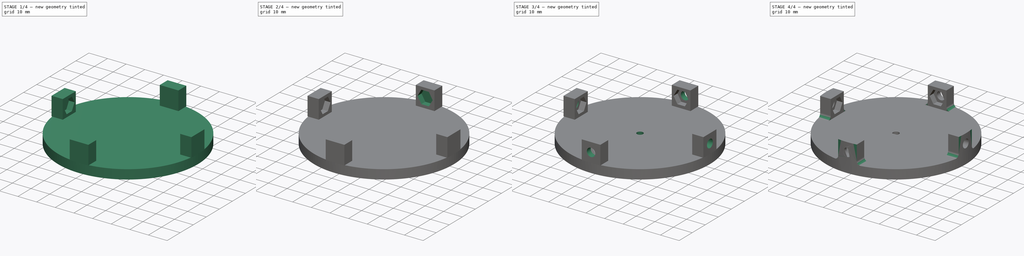
[diagram: build sequence overview — one tinted view per stage of 4, left to right]
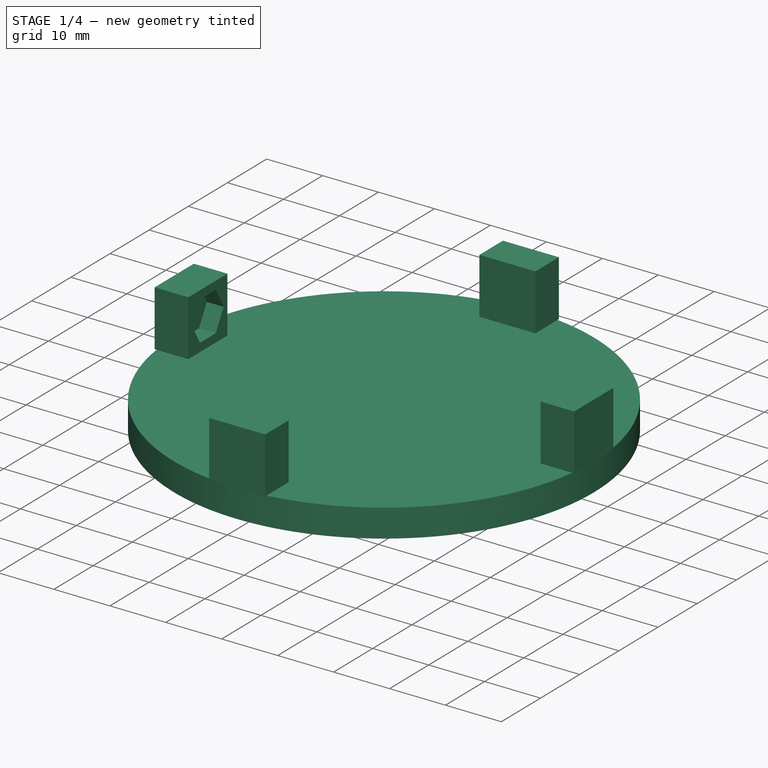
[diagram: stage 1 of 4 — iso view after this stage's code; geometry added in this stage tinted green]
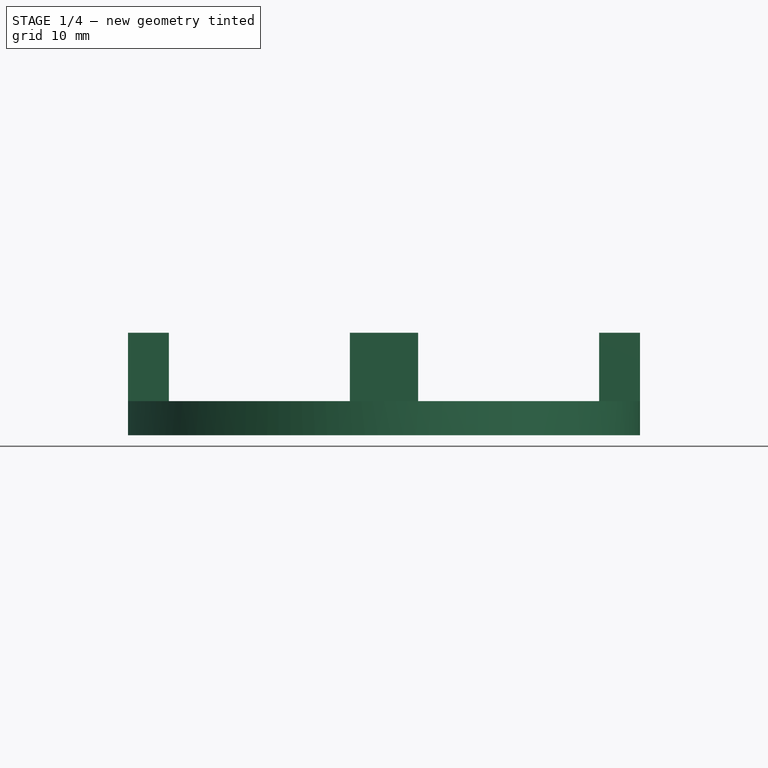
[diagram: stage 1 of 4 — front view after this stage's code; geometry added in this stage tinted green]
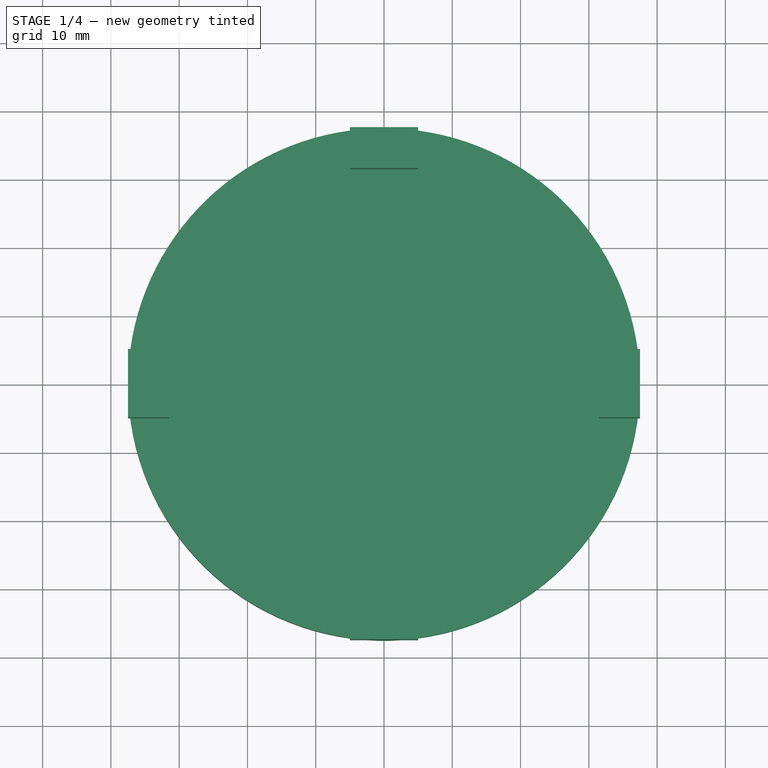
[diagram: stage 1 of 4 — top view after this stage's code; geometry added in this stage tinted green]
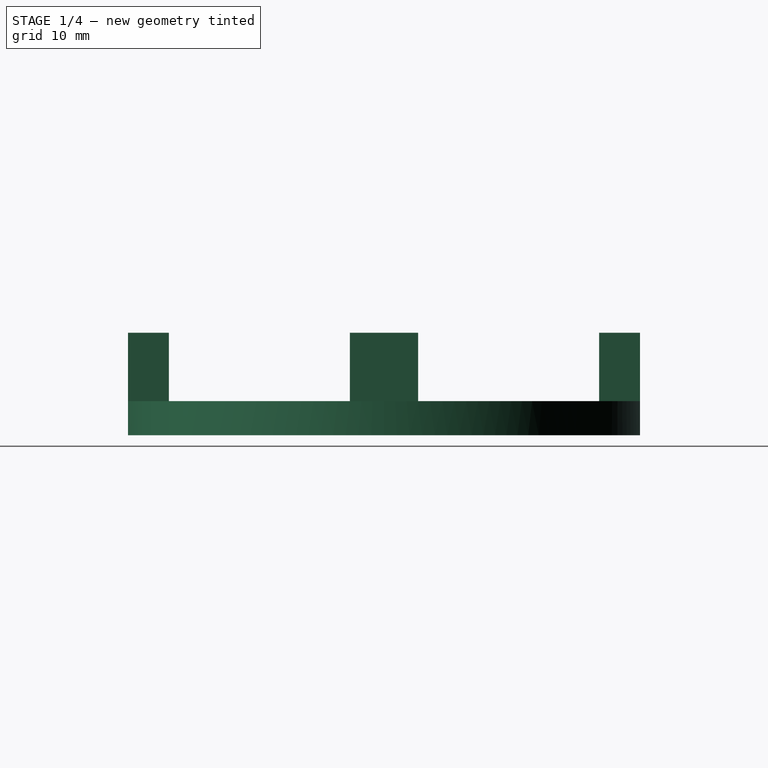
[diagram: stage 1 of 4 — right view after this stage's code; geometry added in this stage tinted green]
FCSTD DOCUMENT  (FreeCAD 1.0R38641 +468 (Git))
Label: MotorStop-v2
License: All rights reserved
LicenseURL: https://en.wikipedia.org/wiki/All_rights_reserved
objects: Sketcher::SketchObject×11, PartDesign::Pocket×8, PartDesign::Pad×3, PartDesign::Fillet×1, PartDesign::Body×1
note: 59 computed .brp shape members not serialized (recipe doc carries the construction recipe); baked Part::Feature solids carry a one-line shape summary decoded from their .brp

FEATURE [Sketcher::SketchObject] Sketch
  ArcFitTolerance = 1e-06
  AttachmentSupport = -> [XY_Plane]
  FullyConstrained = true
  MakeInternals = false
  MapMode = 5
  sketch-geometry (1):
    g0: Circle CenterX=0 CenterY=0 CenterZ=0 NormalX=0 NormalY=0 NormalZ=1 AngleXU=0 Radius=37.5
  constraints (2):
    c: Diameter(g0) = 75
    c: Coincident(g0,g-1)
FEATURE [PartDesign::Pad] Pad
  Direction = (0,0,1)
  Length = 5
  Length2 = 10
  Profile = -> Sketch
  ReferenceAxis = -> Sketch [N_Axis]
  Refine = true
  Suppressed = false
  Type = 0
FEATURE [Sketcher::SketchObject] Sketch001
  ArcFitTolerance = 1e-06
  AttachmentSupport = -> [Pad]
  FullyConstrained = true
  MakeInternals = false
  MapMode = 5
  Placement = pos=(0,0,5) rot=(0,0,1;0rad)
  sketch-geometry (16):
    g0: LineSegment StartX=-5 StartY=37.5 StartZ=0 EndX=-5 EndY=31.5 EndZ=0
    g1: LineSegment StartX=-5 StartY=31.5 StartZ=0 EndX=5 EndY=31.5 EndZ=0
    g2: LineSegment StartX=5 StartY=31.5 StartZ=0 EndX=5 EndY=37.5 EndZ=0
    g3: LineSegment StartX=5 StartY=37.5 StartZ=0 EndX=-5 EndY=37.5 EndZ=0
    g4: LineSegment StartX=-5 StartY=-37.5 StartZ=0 EndX=5 EndY=-37.5 EndZ=0
    g5: LineSegment StartX=5 StartY=-37.5 StartZ=0 EndX=5 EndY=-31.5 EndZ=0
    g6: LineSegment StartX=5 StartY=-31.5 StartZ=0 EndX=-5 EndY=-31.5 EndZ=0
    g7: LineSegment StartX=-5 StartY=-31.5 StartZ=0 EndX=-5 EndY=-37.5 EndZ=0
    g8: LineSegment StartX=-37.5 StartY=5 StartZ=0 EndX=-37.5 EndY=-5 EndZ=0
    g9: LineSegment StartX=-37.5 StartY=-5 StartZ=0 EndX=-31.5 EndY=-5 EndZ=0
    g10: LineSegment StartX=-31.5 StartY=-5 StartZ=0 EndX=-31.5 EndY=5 EndZ=0
    g11: LineSegment StartX=-31.5 StartY=5 StartZ=0 EndX=-37.5 EndY=5 EndZ=0
    g12: LineSegment StartX=31.5 StartY=5 StartZ=0 EndX=31.5 EndY=-5 EndZ=0
    g13: LineSegment StartX=31.5 StartY=-5 StartZ=0 EndX=37.5 EndY=-5 EndZ=0
    g14: LineSegment StartX=37.5 StartY=-5 StartZ=0 EndX=37.5 EndY=5 EndZ=0
    g15: LineSegment StartX=37.5 StartY=5 StartZ=0 EndX=31.5 EndY=5 EndZ=0
  constraints (48):
    c: Coincident(g0,g1)
    c: Coincident(g1,g2)
    c: Coincident(g2,g3)
    c: Coincident(g3,g0)
    c: Vertical(g0)
    c: Vertical(g2)
    c: Horizontal(g1)
    c: Horizontal(g3)
    c: Distance(g0,g2) = 10
    c: Distance(g1,g3) = 6
    c: DistanceY(g-1,g2) = 37.5
    c: DistanceX(g0,g-1) = 5
    c: Coincident(g4,g5)
    c: Coincident(g5,g6)
    c: Coincident(g6,g7)
    c: Coincident(g7,g4)
    c: Horizontal(g4)
    c: Horizontal(g6)
    c: Vertical(g5)
    c: Vertical(g7)
    c: Distance(g5,g7) = 10
    c: Distance(g4,g6) = 6
    c: DistanceX(g-1,g5) = 5
    c: DistanceY(g4,g-1) = 37.5
    c: Coincident(g8,g9)
    c: Coincident(g9,g10)
    c: Coincident(g10,g11)
    c: Coincident(g11,g8)
    c: Vertical(g8)
    c: Vertical(g10)
    c: Horizontal(g9)
    c: Horizontal(g11)
    c: Distance(g8,g10) = 6
    c: Distance(g9,g11) = 10
    c: Coincident(g12,g13)
    c: Coincident(g13,g14)
    c: Coincident(g14,g15)
    c: Coincident(g15,g12)
    c: Vertical(g12)
    c: Vertical(g14)
    c: Horizontal(g13)
    c: Horizontal(g15)
    c: Distance(g12,g14) = 6
    c: Distance(g13,g15) = 10
    c: DistanceY(g12,g-1) = 5
    c: DistanceY(g9,g-1) = 5
    c: DistanceX(g8,g-1) = 37.5
    c: DistanceX(g-1,g13) = 37.5
FEATURE [PartDesign::Pad] Pad001
  BaseFeature = -> Pad
  Direction = (0,0,1)
  Length = 10
  Length2 = 10
  Profile = -> Sketch001
  ReferenceAxis = -> Sketch001 [N_Axis]
  Refine = true
  Suppressed = false
  Type = 0
FEATURE [Sketcher::SketchObject] Sketch002
  ArcFitTolerance = 1e-06
  AttachmentSupport = -> [Pad001]
  FullyConstrained = true
  MakeInternals = false
  MapMode = 5
  Placement = pos=(-31.5,0,0) rot=(0.57735,0.57735,0.57735;2.0944rad)
  sketch-geometry (7):
    g0: LineSegment StartX=4.04145 StartY=10 StartZ=0 EndX=2.02073 EndY=13.5 EndZ=0
    g1: LineSegment StartX=2.02073 StartY=13.5 StartZ=0 EndX=-2.02073 EndY=13.5 EndZ=0
    g2: LineSegment StartX=-2.02073 StartY=13.5 StartZ=0 EndX=-4.04145 EndY=10 EndZ=0
    g3: LineSegment StartX=-4.04145 StartY=10 StartZ=0 EndX=-2.02073 EndY=6.5 EndZ=0
    g4: LineSegment StartX=-2.02073 StartY=6.5 StartZ=0 EndX=2.02073 EndY=6.5 EndZ=0
    g5: LineSegment StartX=2.02073 StartY=6.5 StartZ=0 EndX=4.04145 EndY=10 EndZ=0
    g6: Circle [constr] CenterX=0 CenterY=10 CenterZ=0 NormalX=0 NormalY=0 NormalZ=1 AngleXU=0 Radius=4.04145
  constraints (17):
    c: Coincident(g0,g1)
    c: Coincident(g1,g2)
    c: Coincident(g2,g3)
    c: Coincident(g3,g4)
    c: Coincident(g4,g5)
    c: Coincident(g5,g0)
    c: Equal(g0, g1-g5) x5
    c: PointOnObject(g0,g6)
    c: PointOnObject(g1,g6)
    c: PointOnObject(g2,g6)
    c: PointOnObject(g3,g6)
    c: PointOnObject(g4,g6)
    c: PointOnObject(g5,g6)
    c: PointOnObject(g6,g-2)
    c: DistanceY(g-1,g6) = 10
    c: DistanceY(g4,g0) = 7
    c: Parallel(g4,g-1)
FEATURE [PartDesign::Pocket] Pocket
  BaseFeature = -> Pad001
  Direction = (-1,0,0)
  Length = 3
  Length2 = 5
  Profile = -> Sketch002
  ReferenceAxis = -> Sketch002 [N_Axis]
  Refine = true
  Suppressed = false
  Type = 0
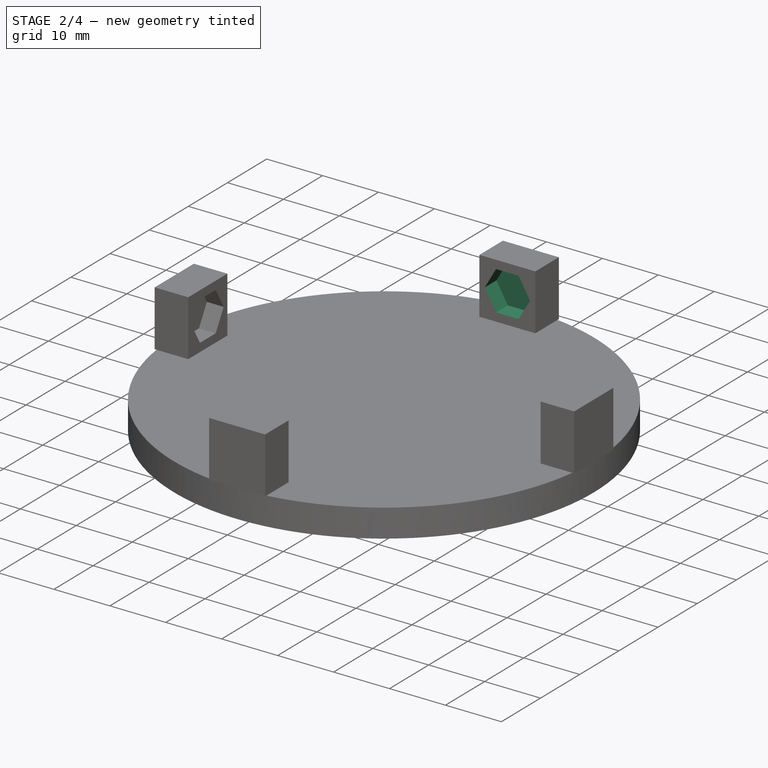
[diagram: stage 2 of 4 — iso view after this stage's code; geometry added in this stage tinted green]
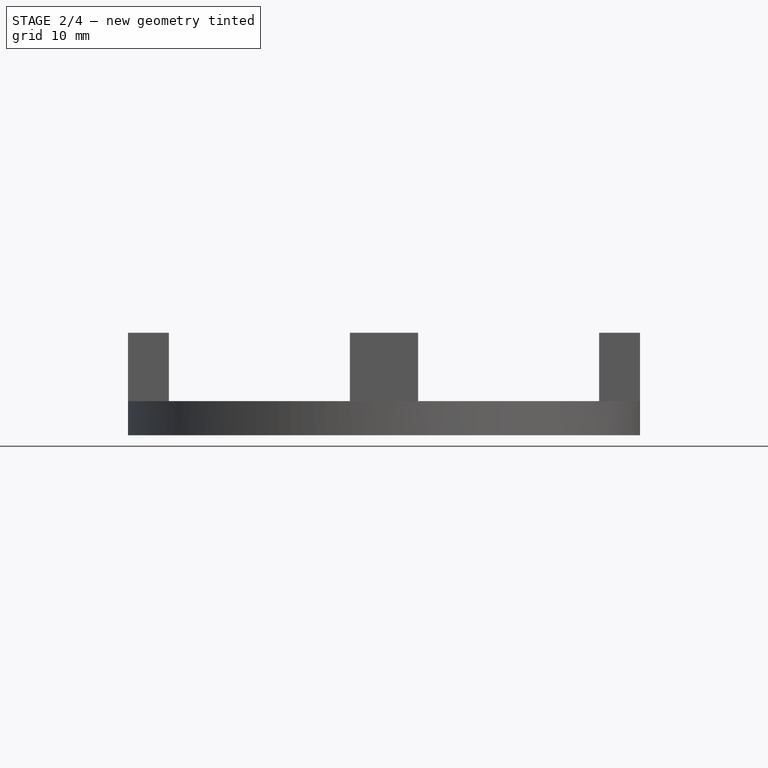
[diagram: stage 2 of 4 — front view after this stage's code; geometry added in this stage tinted green]
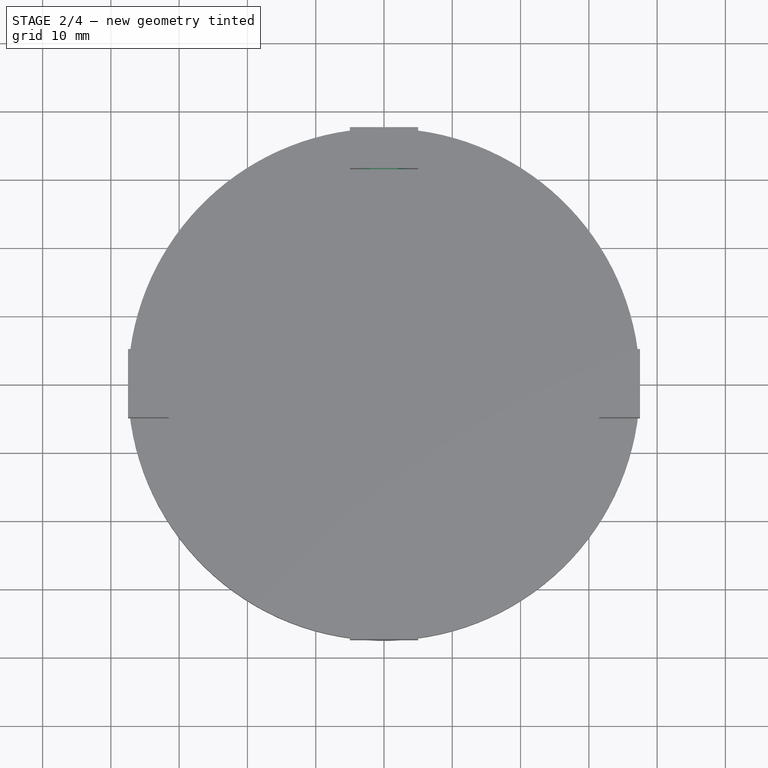
[diagram: stage 2 of 4 — top view after this stage's code; geometry added in this stage tinted green]
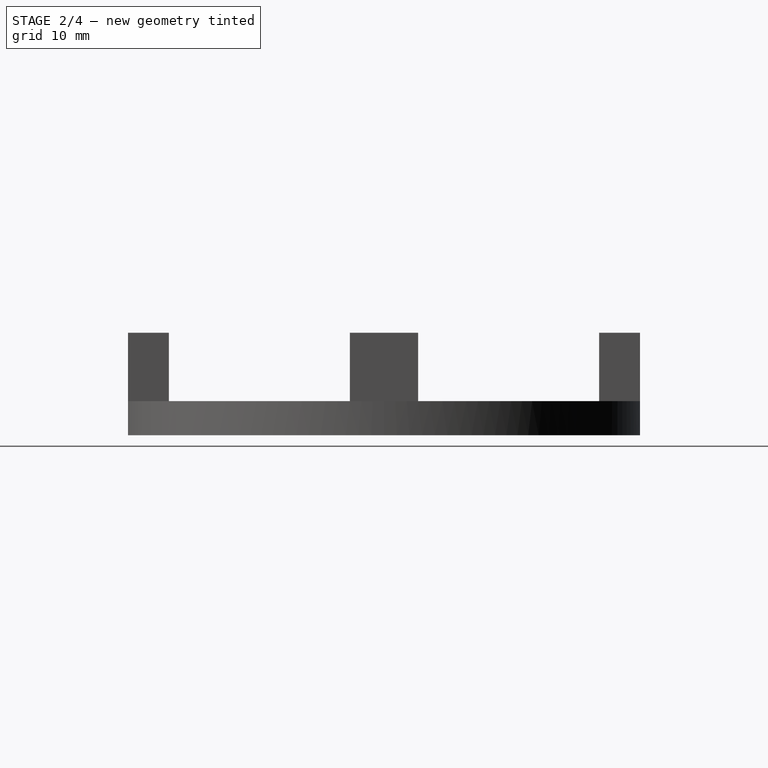
[diagram: stage 2 of 4 — right view after this stage's code; geometry added in this stage tinted green]
FEATURE [Sketcher::SketchObject] Sketch003
  ArcFitTolerance = 1e-06
  AttachmentSupport = -> [Pocket]
  FullyConstrained = true
  MakeInternals = false
  MapMode = 5
  Placement = pos=(0,31.5,0) rot=(1,0,0;1.5708rad)
  sketch-geometry (7):
    g0: LineSegment StartX=4.04145 StartY=10 StartZ=0 EndX=2.02073 EndY=13.5 EndZ=0
    g1: LineSegment StartX=2.02073 StartY=13.5 StartZ=0 EndX=-2.02073 EndY=13.5 EndZ=0
    g2: LineSegment StartX=-2.02073 StartY=13.5 StartZ=0 EndX=-4.04145 EndY=10 EndZ=0
    g3: LineSegment StartX=-4.04145 StartY=10 StartZ=0 EndX=-2.02073 EndY=6.5 EndZ=0
    g4: LineSegment StartX=-2.02073 StartY=6.5 StartZ=0 EndX=2.02073 EndY=6.5 EndZ=0
    g5: LineSegment StartX=2.02073 StartY=6.5 StartZ=0 EndX=4.04145 EndY=10 EndZ=0
    g6: Circle [constr] CenterX=0 CenterY=10 CenterZ=0 NormalX=0 NormalY=0 NormalZ=1 AngleXU=0 Radius=4.04145
  constraints (17):
    c: Coincident(g0,g1)
    c: Coincident(g1,g2)
    c: Coincident(g2,g3)
    c: Coincident(g3,g4)
    c: Coincident(g4,g5)
    c: Coincident(g5,g0)
    c: Equal(g0, g1-g5) x5
    c: PointOnObject(g0,g6)
    c: PointOnObject(g1,g6)
    c: PointOnObject(g2,g6)
    c: PointOnObject(g3,g6)
    c: PointOnObject(g4,g6)
    c: PointOnObject(g5,g6)
    c: PointOnObject(g6,g-2)
    c: DistanceY(g6) = 10
    c: DistanceY(g4,g0) = 7
    c: Parallel(g4,g-1)
FEATURE [PartDesign::Pocket] Pocket001
  BaseFeature = -> Pocket
  Direction = (0,1,-2e-16)
  Length = 3
  Length2 = 5
  Profile = -> Sketch003
  ReferenceAxis = -> Sketch003 [N_Axis]
  Refine = true
  Suppressed = false
  Type = 0
FEATURE [Sketcher::SketchObject] Sketch004
  ArcFitTolerance = 1e-06
  AttachmentSupport = -> [Pocket001]
  FullyConstrained = true
  MakeInternals = false
  MapMode = 5
  Placement = pos=(31.5,0,0) rot=(0.57735,-0.57735,-0.57735;2.0944rad)
  sketch-geometry (7):
    g0: LineSegment StartX=4.04145 StartY=10 StartZ=0 EndX=2.02073 EndY=13.5 EndZ=0
    g1: LineSegment StartX=2.02073 StartY=13.5 StartZ=0 EndX=-2.02073 EndY=13.5 EndZ=0
    g2: LineSegment StartX=-2.02073 StartY=13.5 StartZ=0 EndX=-4.04145 EndY=10 EndZ=0
    g3: LineSegment StartX=-4.04145 StartY=10 StartZ=0 EndX=-2.02073 EndY=6.5 EndZ=0
    g4: LineSegment StartX=-2.02073 StartY=6.5 StartZ=0 EndX=2.02073 EndY=6.5 EndZ=0
    g5: LineSegment StartX=2.02073 StartY=6.5 StartZ=0 EndX=4.04145 EndY=10 EndZ=0
    g6: Circle [constr] CenterX=0 CenterY=10 CenterZ=0 NormalX=0 NormalY=0 NormalZ=1 AngleXU=0 Radius=4.04145
  constraints (17):
    c: Coincident(g0,g1)
    c: Coincident(g1,g2)
    c: Coincident(g2,g3)
    c: Coincident(g3,g4)
    c: Coincident(g4,g5)
    c: Coincident(g5,g0)
    c: Equal(g0, g1-g5) x5
    c: PointOnObject(g0,g6)
    c: PointOnObject(g1,g6)
    c: PointOnObject(g2,g6)
    c: PointOnObject(g3,g6)
    c: PointOnObject(g4,g6)
    c: PointOnObject(g5,g6)
    c: PointOnObject(g6,g-2)
    c: DistanceY(g-1,g6) = 10
    c: DistanceY(g4,g0) = 7
    c: Parallel(g4,g-1)
FEATURE [PartDesign::Pocket] Pocket002
  BaseFeature = -> Pocket001
  Direction = (1,0,0)
  Length = 3
  Length2 = 5
  Profile = -> Sketch004
  ReferenceAxis = -> Sketch004 [N_Axis]
  Refine = true
  Suppressed = false
  Type = 0
FEATURE [Sketcher::SketchObject] Sketch005
  ArcFitTolerance = 1e-06
  AttachmentSupport = -> [Pocket002]
  FullyConstrained = true
  MakeInternals = false
  MapMode = 5
  Placement = pos=(0,-31.5,0) rot=(0,0.707107,0.707107;3.14159rad)
  sketch-geometry (7):
    g0: LineSegment StartX=4.04145 StartY=10 StartZ=0 EndX=2.02073 EndY=13.5 EndZ=0
    g1: LineSegment StartX=2.02073 StartY=13.5 StartZ=0 EndX=-2.02073 EndY=13.5 EndZ=0
    g2: LineSegment StartX=-2.02073 StartY=13.5 StartZ=0 EndX=-4.04145 EndY=10 EndZ=0
    g3: LineSegment StartX=-4.04145 StartY=10 StartZ=0 EndX=-2.02073 EndY=6.5 EndZ=0
    g4: LineSegment StartX=-2.02073 StartY=6.5 StartZ=0 EndX=2.02073 EndY=6.5 EndZ=0
    g5: LineSegment StartX=2.02073 StartY=6.5 StartZ=0 EndX=4.04145 EndY=10 EndZ=0
    g6: Circle [constr] CenterX=0 CenterY=10 CenterZ=0 NormalX=0 NormalY=0 NormalZ=1 AngleXU=0 Radius=4.04145
  constraints (17):
    c: Coincident(g0,g1)
    c: Coincident(g1,g2)
    c: Coincident(g2,g3)
    c: Coincident(g3,g4)
    c: Coincident(g4,g5)
    c: Coincident(g5,g0)
    c: Equal(g0, g1-g5) x5
    c: PointOnObject(g0,g6)
    c: PointOnObject(g1,g6)
    c: PointOnObject(g2,g6)
    c: PointOnObject(g3,g6)
    c: PointOnObject(g4,g6)
    c: PointOnObject(g5,g6)
    c: PointOnObject(g6,g-2)
    c: DistanceY(g-1,g6) = 10
    c: DistanceY(g4,g0) = 7
    c: Parallel(g4,g-1)
FEATURE [PartDesign::Pocket] Pocket003
  BaseFeature = -> Pocket002
  Direction = (0,-1,2e-16)
  Length = 3
  Length2 = 5
  Profile = -> Sketch005
  ReferenceAxis = -> Sketch005 [N_Axis]
  Refine = true
  Suppressed = false
  Type = 0
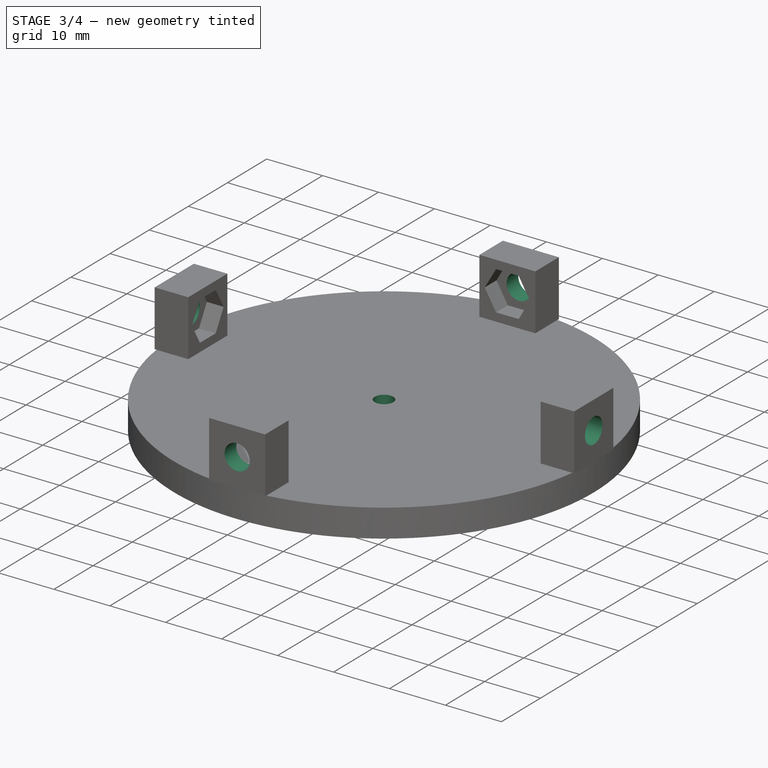
[diagram: stage 3 of 4 — iso view after this stage's code; geometry added in this stage tinted green]
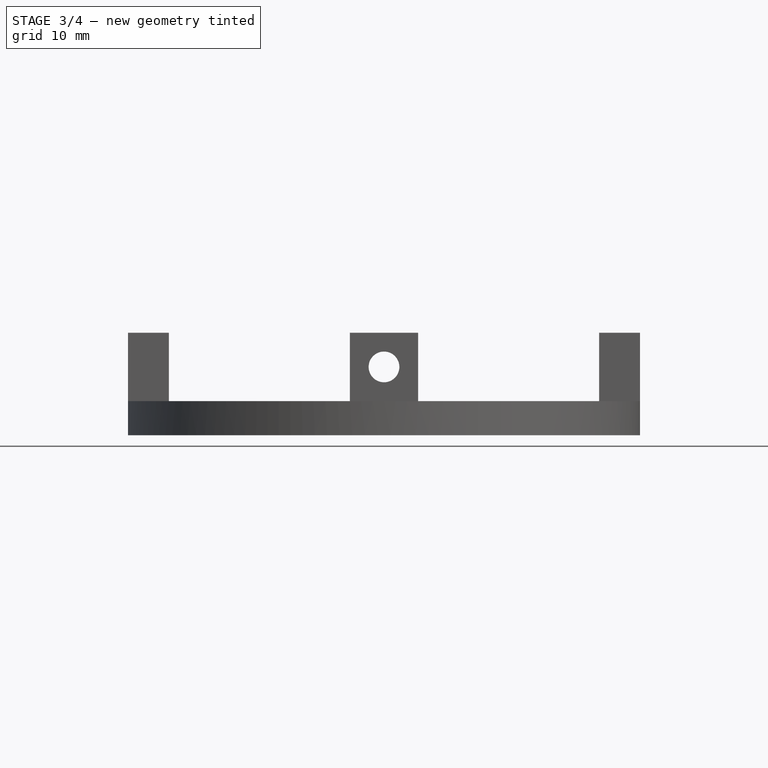
[diagram: stage 3 of 4 — front view after this stage's code; geometry added in this stage tinted green]
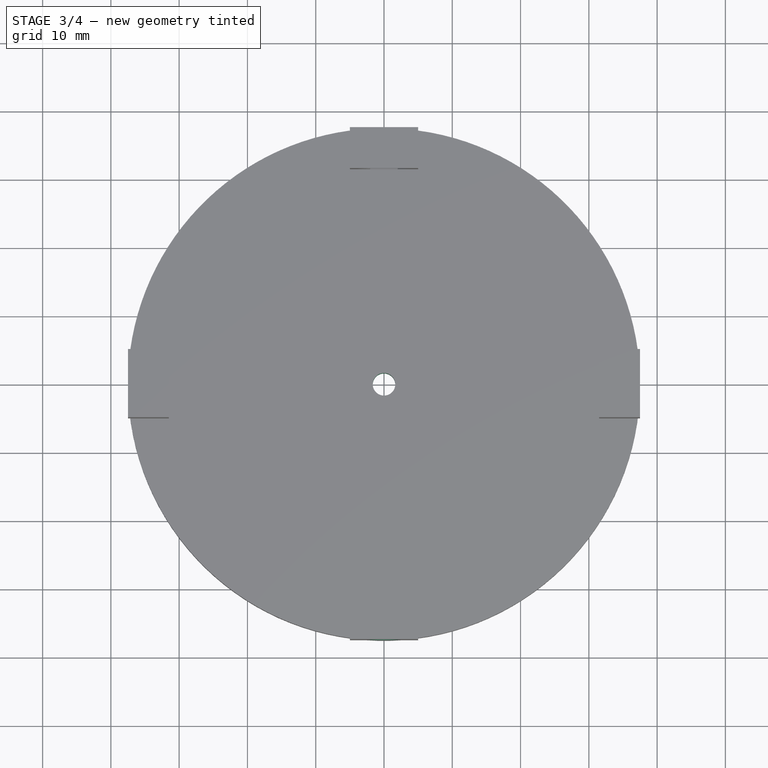
[diagram: stage 3 of 4 — top view after this stage's code; geometry added in this stage tinted green]
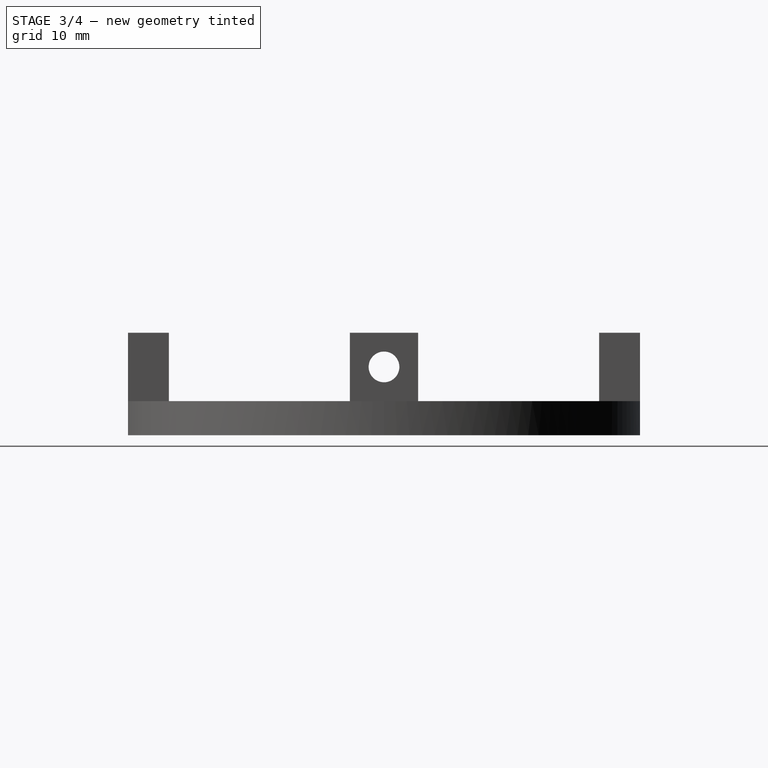
[diagram: stage 3 of 4 — right view after this stage's code; geometry added in this stage tinted green]
FEATURE [Sketcher::SketchObject] Sketch006
  ArcFitTolerance = 1e-06
  AttachmentSupport = -> [Pocket003]
  FullyConstrained = true
  MakeInternals = false
  MapMode = 5
  Placement = pos=(37.5,0,0) rot=(0.57735,0.57735,0.57735;2.0944rad)
  sketch-geometry (1):
    g0: Circle CenterX=0 CenterY=10 CenterZ=0 NormalX=0 NormalY=0 NormalZ=1 AngleXU=0 Radius=2.25
  constraints (3):
    c: Diameter(g0) = 4.5
    c: PointOnObject(g0,g-2)
    c: DistanceY(g-1,g0) = 10
FEATURE [PartDesign::Pocket] Pocket004
  BaseFeature = -> Pocket003
  Direction = (-1,0,0)
  Length = 75
  Length2 = 5
  Profile = -> Sketch006
  ReferenceAxis = -> Sketch006 [N_Axis]
  Refine = true
  Suppressed = false
  Type = 0
FEATURE [Sketcher::SketchObject] Sketch007
  ArcFitTolerance = 1e-06
  AttachmentSupport = -> [Pocket004]
  FullyConstrained = true
  MakeInternals = false
  MapMode = 5
  Placement = pos=(0,-37.5,0) rot=(1,0,0;1.5708rad)
  sketch-geometry (1):
    g0: Circle CenterX=0 CenterY=10 CenterZ=0 NormalX=0 NormalY=0 NormalZ=1 AngleXU=0 Radius=2.25
  constraints (3):
    c: Diameter(g0) = 4.5
    c: PointOnObject(g0,g-2)
    c: DistanceY(g-1,g0) = 10
FEATURE [PartDesign::Pocket] Pocket005
  BaseFeature = -> Pocket004
  Direction = (0,1,-2e-16)
  Length = 75
  Length2 = 5
  Profile = -> Sketch007
  ReferenceAxis = -> Sketch007 [N_Axis]
  Refine = true
  Suppressed = false
  Type = 0
FEATURE [Sketcher::SketchObject] Sketch008
  ArcFitTolerance = 1e-06
  AttachmentSupport = -> [Pocket005]
  FullyConstrained = true
  MakeInternals = false
  MapMode = 5
  Placement = pos=(0,0,0) rot=(1,0,0;3.14159rad)
  sketch-geometry (1):
    g0: Circle CenterX=0 CenterY=0 CenterZ=0 NormalX=0 NormalY=0 NormalZ=1 AngleXU=0 Radius=1.65
  constraints (2):
    c: Diameter(g0) = 3.3
    c: Coincident(g0,g-1)
FEATURE [PartDesign::Pocket] Pocket006
  BaseFeature = -> Pocket005
  Direction = (0,0,1)
  Length = 5
  Length2 = 5
  Profile = -> Sketch008
  ReferenceAxis = -> Sketch008 [N_Axis]
  Refine = true
  Suppressed = false
  Type = 0
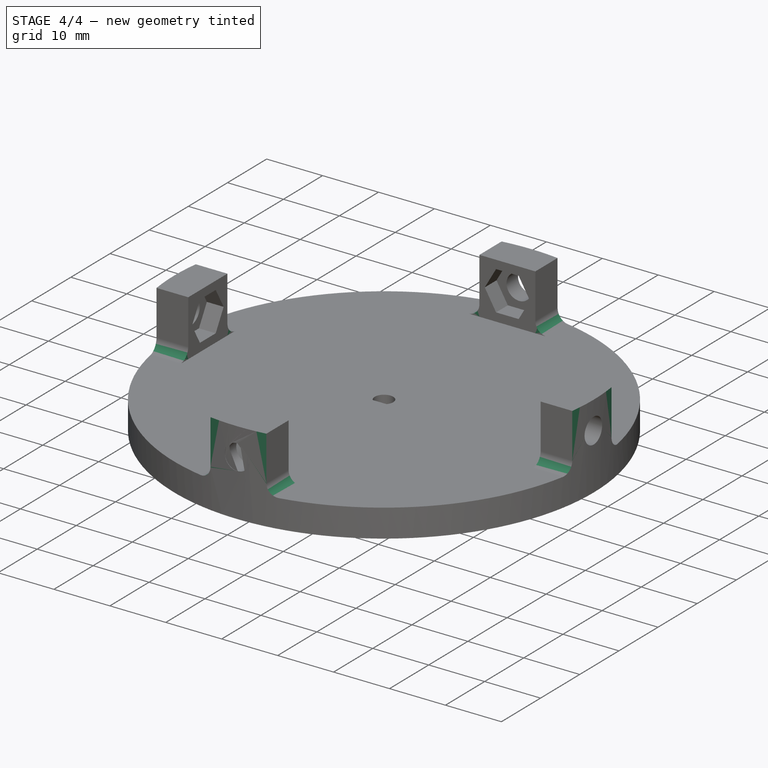
[diagram: stage 4 of 4 — iso view after this stage's code; geometry added in this stage tinted green]
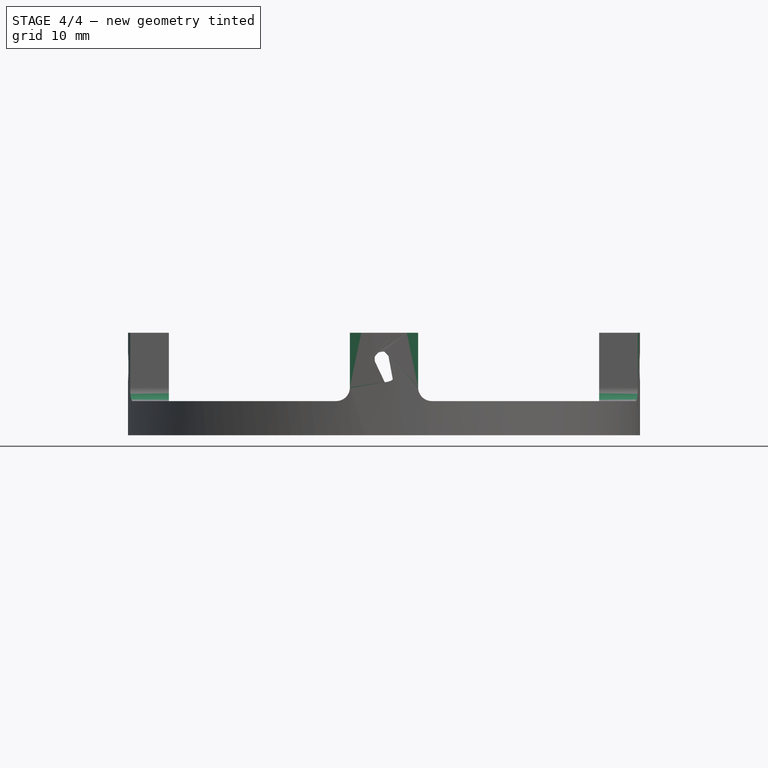
[diagram: stage 4 of 4 — front view after this stage's code; geometry added in this stage tinted green]
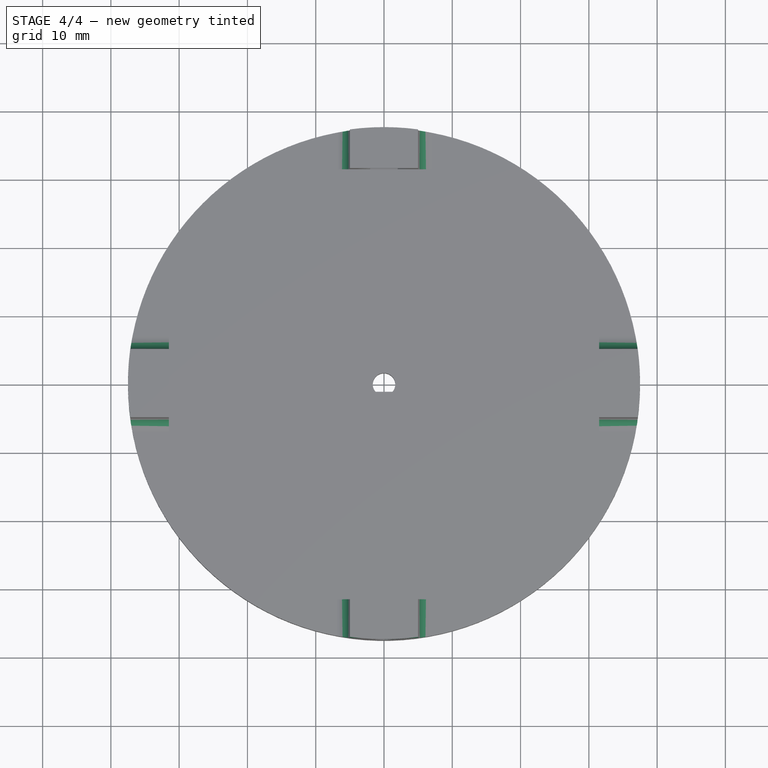
[diagram: stage 4 of 4 — top view after this stage's code; geometry added in this stage tinted green]
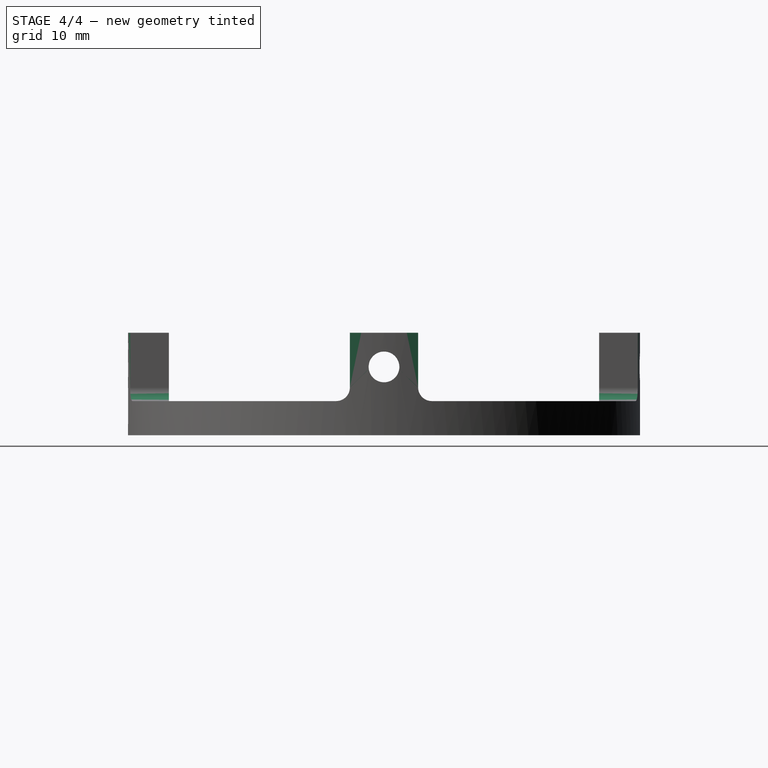
[diagram: stage 4 of 4 — right view after this stage's code; geometry added in this stage tinted green]
FEATURE [Sketcher::SketchObject] Sketch009
  ArcFitTolerance = 1e-06
  AttachmentSupport = -> [Pocket006]
  FullyConstrained = false
  MakeInternals = false
  MapMode = 5
  Placement = pos=(0,0,0) rot=(1,0,0;3.14159rad)
  sketch-geometry (4):
    g0: LineSegment StartX=-1.40351 StartY=2.41199 StartZ=0 EndX=-1.40351 EndY=1.1 EndZ=0
    g1: LineSegment StartX=-1.40351 StartY=1.1 StartZ=0 EndX=1.35322 EndY=1.1 EndZ=0
    g2: LineSegment StartX=1.35322 StartY=1.1 StartZ=0 EndX=1.35322 EndY=2.41199 EndZ=0
    g3: LineSegment StartX=1.35322 StartY=2.41199 StartZ=0 EndX=-1.40351 EndY=2.41199 EndZ=0
  constraints (9):
    c: Coincident(g0,g1)
    c: Coincident(g1,g2)
    c: Coincident(g2,g3)
    c: Coincident(g3,g0)
    c: Vertical(g0)
    c: Vertical(g2)
    c: Horizontal(g1)
    c: Horizontal(g3)
    c: DistanceY(g-1,g0) = 1.1
FEATURE [PartDesign::Pad] Pad002
  BaseFeature = -> Pocket006
  Direction = (0,0,-1)
  Length = 5
  Length2 = 10
  Profile = -> Sketch009
  ReferenceAxis = -> Sketch009 [N_Axis]
  Refine = true
  Reversed = true
  Suppressed = false
  Type = 0
FEATURE [Sketcher::SketchObject] Sketch010
  ArcFitTolerance = 1e-06
  AttachmentSupport = -> [Pad002]
  FullyConstrained = true
  MakeInternals = false
  MapMode = 5
  Placement = pos=(0,0,0) rot=(1,0,0;3.14159rad)
  sketch-geometry (2):
    g0: Circle CenterX=0 CenterY=0 CenterZ=0 NormalX=0 NormalY=0 NormalZ=1 AngleXU=0 Radius=37.5
    g1: Circle CenterX=0 CenterY=0 CenterZ=0 NormalX=0 NormalY=0 NormalZ=1 AngleXU=0 Radius=40
  constraints (4):
    c: Diameter(g0) = 75
    c: Coincident(g0,g-1)
    c: Diameter(g1) = 80
    c: Coincident(g1,g0)
FEATURE [PartDesign::Pocket] Pocket007
  BaseFeature = -> Pad002
  Direction = (0,0,1)
  Length = 15
  Length2 = 5
  Profile = -> Sketch010
  ReferenceAxis = -> Sketch010 [N_Axis]
  Refine = true
  Suppressed = false
  Type = 0
FEATURE [PartDesign::Fillet] Fillet
  Base = -> Pocket007 [Edge21,Edge19,Edge17,Edge23,Edge11,Edge9,Edge15,Edge13]
  BaseFeature = -> Pocket007
  Radius = 2
  Refine = true
  SupportTransform = false
  Suppressed = false
  UseAllEdges = false
FEATURE [PartDesign::Body] Body
  AllowCompound = false
  Group = -> [Sketch,Pad,Sketch001,Pad001,Sketch002,Pocket,Sketch003,Pocket001,Sketch004,Pocket002,Sketch005,Pocket003,Sketch006,Pocket004,Sketch007,Pocket005,Sketch008,Pocket006,Sketch009,Pad002,Sketch010,Pocket007,Fillet]
  Origin = -> Origin
  Tip = -> Fillet
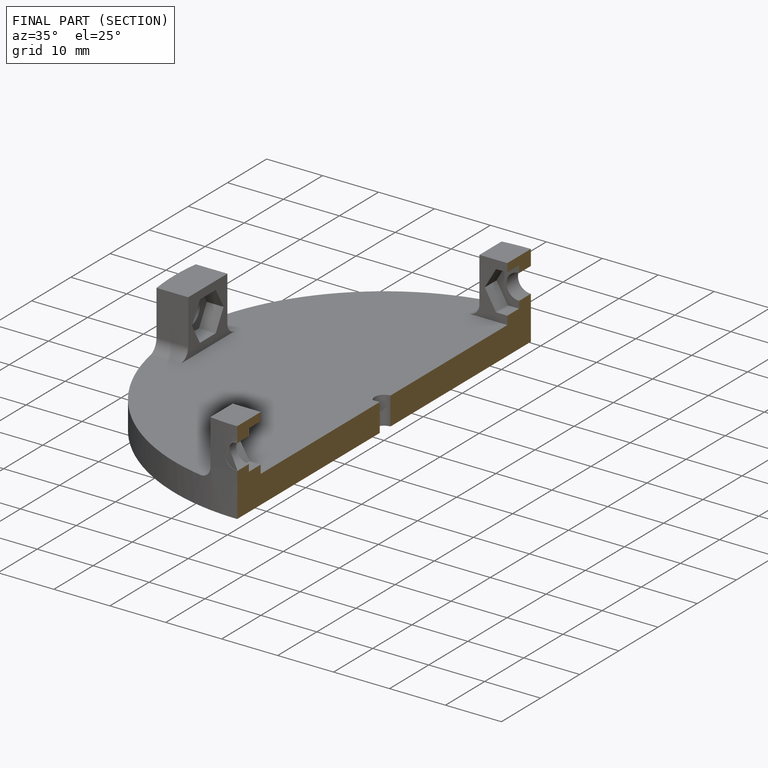
[diagram: finished part — half-section view (interior)]
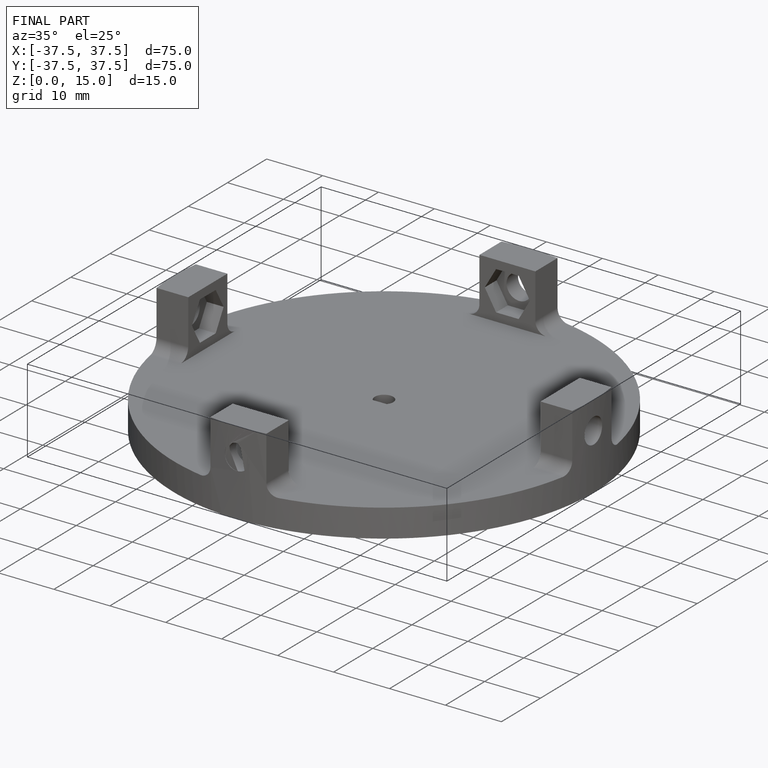
[diagram: finished part — iso view with bounding-box wireframe]
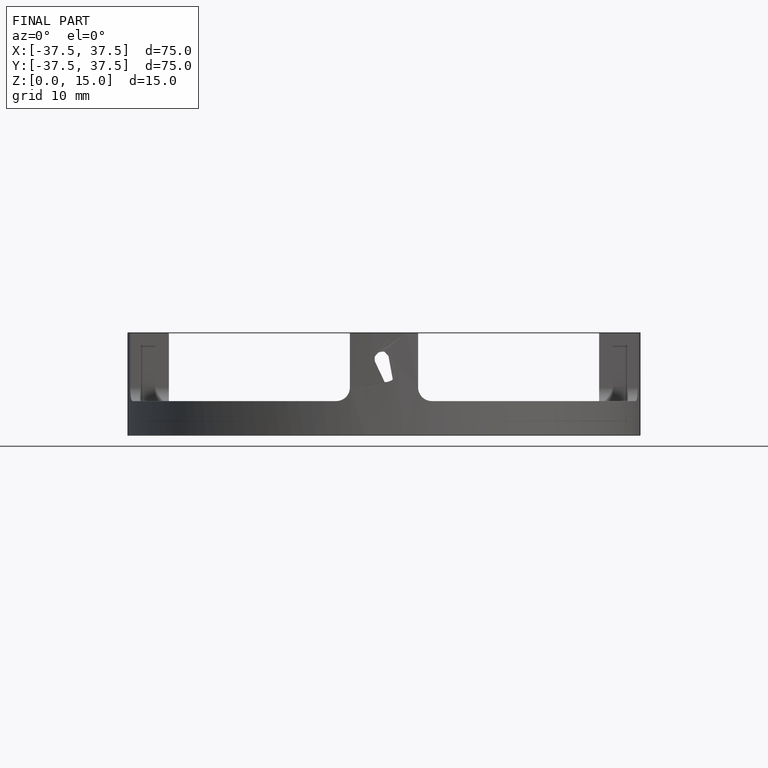
[diagram: finished part — front view with bounding-box wireframe]
